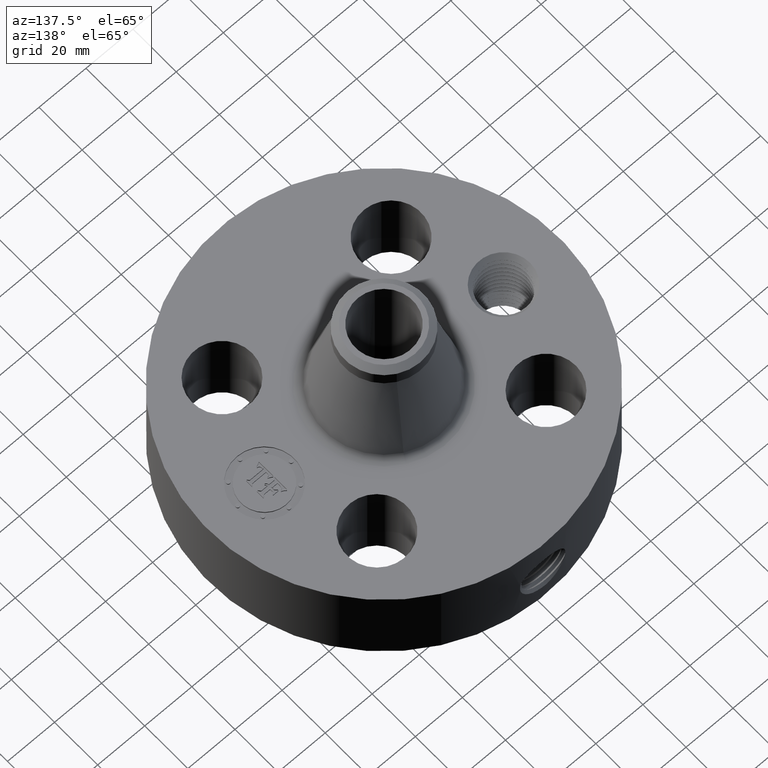
[diagram: clean part render]
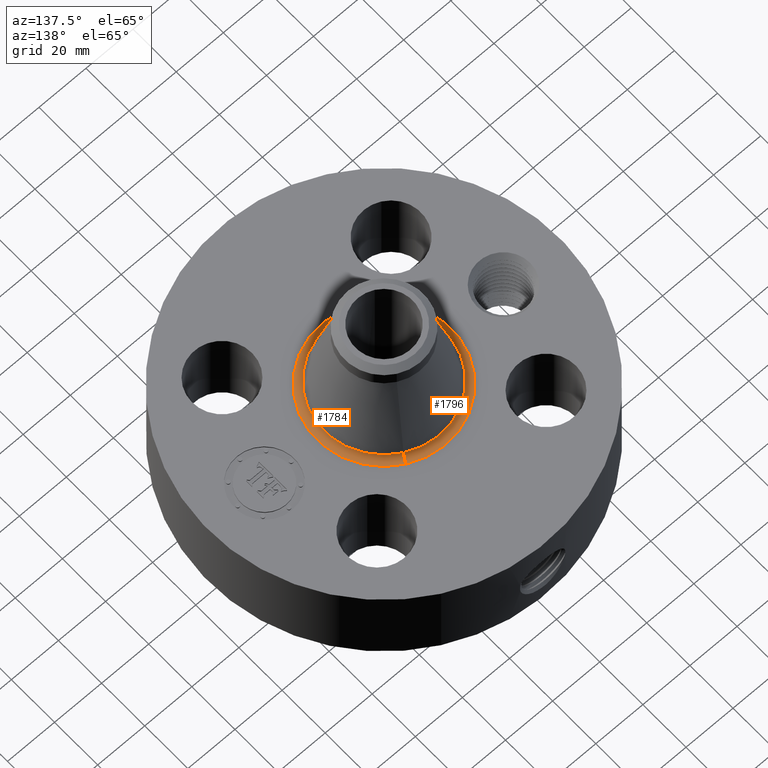
[diagram: same view with one multi-face feature highlighted, each face labeled with its STEP entity id]
A machine part, auxiliary view. The highlighted faces form ONE feature: a constant-radius fillet chain: 2 tangent blend faces with common blend radius 3.048 mm. The faces share edges in the B-rep.
Their STEP definitions:
[1] entity #1784 (Torus):
#502=AXIS2_PLACEMENT_3D('Circle Axis2P3D',#500,#501,$) ;
#1757=AXIS2_PLACEMENT_3D('Torus Axis2P3D',#1754,#1755,#1756) ;
#1761=AXIS2_PLACEMENT_3D('Circle Axis2P3D',#1759,#1760,$) ;
#1768=AXIS2_PLACEMENT_3D('Circle Axis2P3D',#1766,#1767,$) ;
#1775=AXIS2_PLACEMENT_3D('Circle Axis2P3D',#1773,#1774,$) ;
#495=CARTESIAN_POINT('Vertex',(-0.538386626956,-0.985510110177,1.75000000001)) ;
#497=CARTESIAN_POINT('Vertex',(0.538386626956,0.985510110177,1.75000000001)) ;
#500=CARTESIAN_POINT('Axis2P3D Location',(0.,0.,1.75000000001)) ;
#1754=CARTESIAN_POINT('Axis2P3D Location',(0.,0.,1.87000000001)) ;
#1759=CARTESIAN_POINT('Axis2P3D Location',(0.538386626956,0.985510110177,1.87000000001)) ;
#1763=CARTESIAN_POINT('Vertex',(0.482677744445,0.88353568475,1.84003774094)) ;
#1766=CARTESIAN_POINT('Axis2P3D Location',(0.,0.,1.84003774094)) ;
#1770=CARTESIAN_POINT('Vertex',(-0.482677744445,-0.88353568475,1.84003774094)) ;
#1773=CARTESIAN_POINT('Axis2P3D Location',(-0.538386626956,-0.985510110177,1.87000000001)) ;
#501=DIRECTION('Axis2P3D Direction',(0.,0.,-0.0393700787402)) ;
#1755=DIRECTION('Axis2P3D Direction',(0.,0.,-0.0393700787402)) ;
#1756=DIRECTION('Axis2P3D XDirection',(-0.0188750212049,-0.0345504945626,0.)) ;
#1760=DIRECTION('Axis2P3D Direction',(-0.0345504945626,0.0188750212049,0.)) ;
#1767=DIRECTION('Axis2P3D Direction',(0.,0.,-0.0393700787402)) ;
#1774=DIRECTION('Axis2P3D Direction',(0.0345504945626,-0.0188750212049,0.)) ;
#1779=ORIENTED_EDGE('',*,*,#504,.F.) ;
#1780=ORIENTED_EDGE('',*,*,#1765,.T.) ;
#1781=ORIENTED_EDGE('',*,*,#1772,.T.) ;
#1782=ORIENTED_EDGE('',*,*,#1777,.F.) ;
#1784=ADVANCED_FACE('PartBody',(#1783),#1758,.F.) ;
#503=CIRCLE('generated circle',#502,1.12298278586) ;
#1762=CIRCLE('generated circle',#1761,0.12) ;
#1769=CIRCLE('generated circle',#1768,1.00678354735) ;
#1776=CIRCLE('generated circle',#1775,0.12) ;
#1758=TOROIDAL_SURFACE('homeo Torus',#1757,1.12298278586,0.12) ;
#504=EDGE_CURVE('',#498,#496,#503,.T.) ;
#1765=EDGE_CURVE('',#498,#1764,#1762,.T.) ;
#1772=EDGE_CURVE('',#1764,#1771,#1769,.T.) ;
#1777=EDGE_CURVE('',#496,#1771,#1776,.T.) ;
#1778=EDGE_LOOP('',(#1779,#1780,#1781,#1782)) ;
#1783=FACE_OUTER_BOUND('',#1778,.T.) ;
#496=VERTEX_POINT('',#495) ;
#498=VERTEX_POINT('',#497) ;
#1764=VERTEX_POINT('',#1763) ;
#1771=VERTEX_POINT('',#1770) ;
[2] entity #1796 (Torus):
#493=AXIS2_PLACEMENT_3D('Circle Axis2P3D',#491,#492,$) ;
#1757=AXIS2_PLACEMENT_3D('Torus Axis2P3D',#1754,#1755,#1756) ;
#1761=AXIS2_PLACEMENT_3D('Circle Axis2P3D',#1759,#1760,$) ;
#1775=AXIS2_PLACEMENT_3D('Circle Axis2P3D',#1773,#1774,$) ;
#1787=AXIS2_PLACEMENT_3D('Circle Axis2P3D',#1785,#1786,$) ;
#491=CARTESIAN_POINT('Axis2P3D Location',(0.,0.,1.75000000001)) ;
#495=CARTESIAN_POINT('Vertex',(-0.538386626956,-0.985510110177,1.75000000001)) ;
#497=CARTESIAN_POINT('Vertex',(0.538386626956,0.985510110177,1.75000000001)) ;
#1754=CARTESIAN_POINT('Axis2P3D Location',(0.,0.,1.87000000001)) ;
#1759=CARTESIAN_POINT('Axis2P3D Location',(0.538386626956,0.985510110177,1.87000000001)) ;
#1763=CARTESIAN_POINT('Vertex',(0.482677744445,0.88353568475,1.84003774094)) ;
#1770=CARTESIAN_POINT('Vertex',(-0.482677744445,-0.88353568475,1.84003774094)) ;
#1773=CARTESIAN_POINT('Axis2P3D Location',(-0.538386626956,-0.985510110177,1.87000000001)) ;
#1785=CARTESIAN_POINT('Axis2P3D Location',(0.,0.,1.84003774094)) ;
#492=DIRECTION('Axis2P3D Direction',(0.,0.,-0.0393700787402)) ;
#1755=DIRECTION('Axis2P3D Direction',(0.,0.,-0.0393700787402)) ;
#1756=DIRECTION('Axis2P3D XDirection',(-0.0188750212049,-0.0345504945626,0.)) ;
#1760=DIRECTION('Axis2P3D Direction',(-0.0345504945626,0.0188750212049,0.)) ;
#1774=DIRECTION('Axis2P3D Direction',(0.0345504945626,-0.0188750212049,0.)) ;
#1786=DIRECTION('Axis2P3D Direction',(0.,0.,-0.0393700787402)) ;
#1791=ORIENTED_EDGE('',*,*,#499,.F.) ;
#1792=ORIENTED_EDGE('',*,*,#1777,.T.) ;
#1793=ORIENTED_EDGE('',*,*,#1789,.T.) ;
#1794=ORIENTED_EDGE('',*,*,#1765,.F.) ;
#1796=ADVANCED_FACE('PartBody',(#1795),#1758,.F.) ;
#494=CIRCLE('generated circle',#493,1.12298278586) ;
#1762=CIRCLE('generated circle',#1761,0.12) ;
#1776=CIRCLE('generated circle',#1775,0.12) ;
#1788=CIRCLE('generated circle',#1787,1.00678354735) ;
#1758=TOROIDAL_SURFACE('homeo Torus',#1757,1.12298278586,0.12) ;
#499=EDGE_CURVE('',#496,#498,#494,.T.) ;
#1765=EDGE_CURVE('',#498,#1764,#1762,.T.) ;
#1777=EDGE_CURVE('',#496,#1771,#1776,.T.) ;
#1789=EDGE_CURVE('',#1771,#1764,#1788,.T.) ;
#1790=EDGE_LOOP('',(#1791,#1792,#1793,#1794)) ;
#1795=FACE_OUTER_BOUND('',#1790,.T.) ;
#496=VERTEX_POINT('',#495) ;
#498=VERTEX_POINT('',#497) ;
#1764=VERTEX_POINT('',#1763) ;
#1771=VERTEX_POINT('',#1770) ;